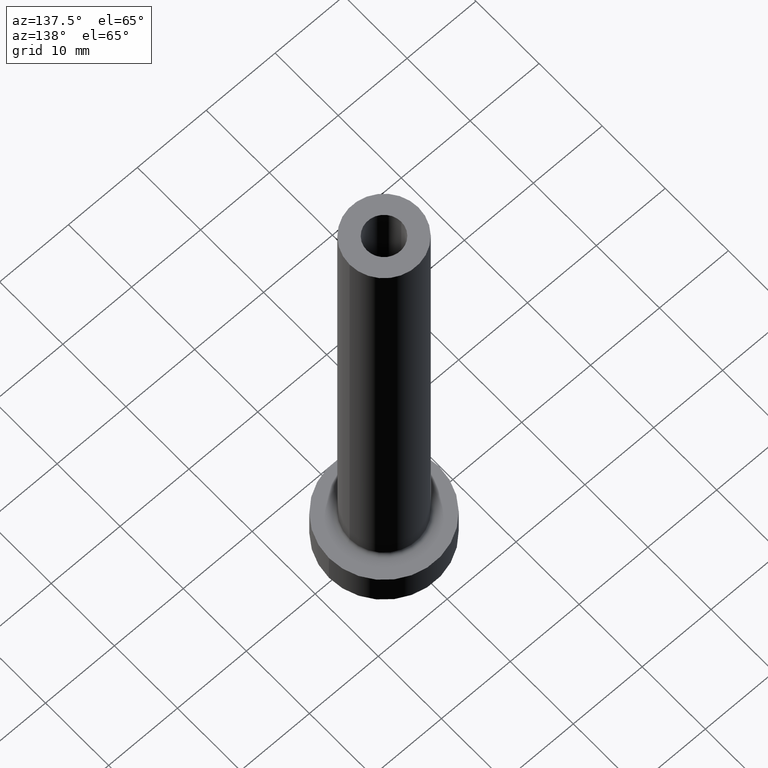
[diagram: clean part render]
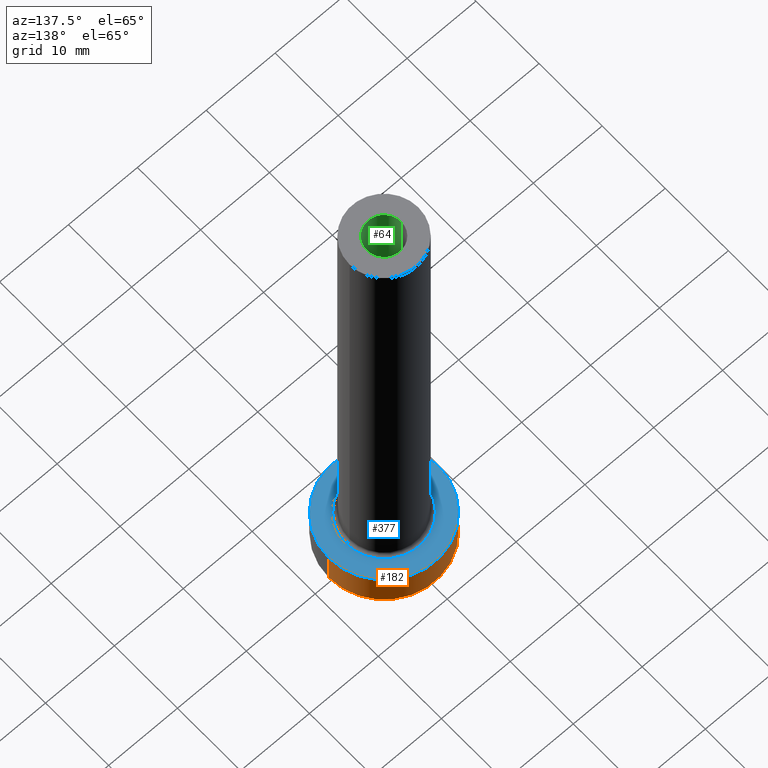
[diagram: same view with three faces highlighted in distinct colors, each labeled with its STEP entity id]
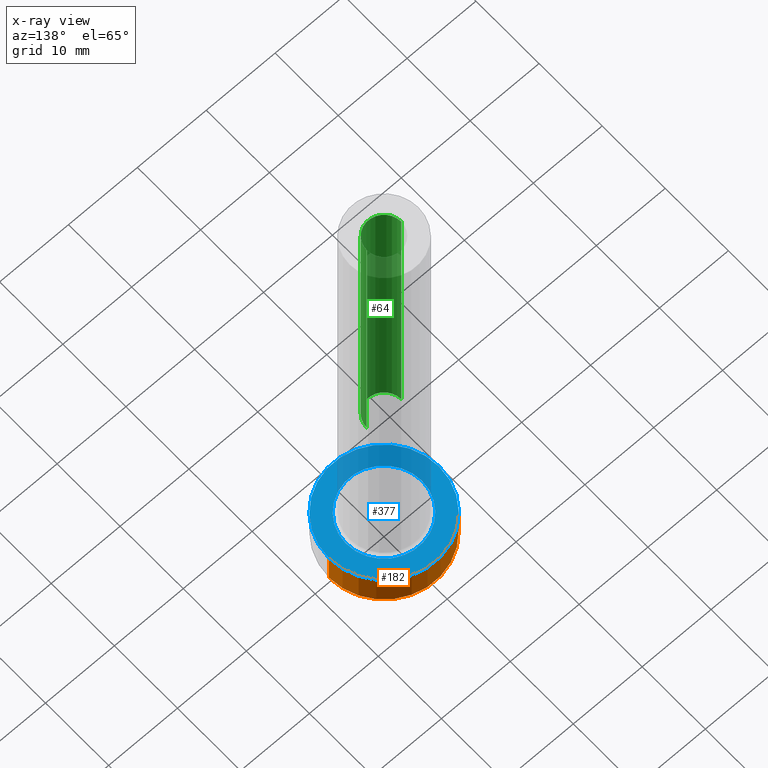
[diagram: x-ray of the same camera — body ghosted, the three highlighted faces saturated]
A machine part, auxiliary view with three faces highlighted in distinct colors.
The next image is the same camera in x-ray (body ghosted, the three faces saturated) — at least one of them is partly hidden behind the body in this view.
Their STEP definitions:

[orange] entity #182 — the highlighted cylindrical surface (partial cylindrical patch) has radius 8 mm, axis along (-0, -0, -1).
#5 = CARTESIAN_POINT ( 'NONE',  ( 8.000000000000000000, 9.797174393178825657E-16, 0.000000000000000000 ) ) ;
#20 = EDGE_CURVE ( 'NONE', #262, #96, #54, .T. ) ;
#21 = VERTEX_POINT ( 'NONE', #5 ) ;
#23 = DIRECTION ( 'NONE',  ( -0.000000000000000000, -0.000000000000000000, -1.000000000000000000 ) ) ;
#31 = AXIS2_PLACEMENT_3D ( 'NONE', #343, #40, #347 ) ;
#40 = DIRECTION ( 'NONE',  ( 0.000000000000000000, 0.000000000000000000, 1.000000000000000000 ) ) ;
#54 = LINE ( 'NONE', #227, #230 ) ;
#58 = ORIENTED_EDGE ( 'NONE', *, *, #20, .F. ) ;
#78 = CIRCLE ( 'NONE', #458, 8.000000000000000000 ) ;
#88 = ORIENTED_EDGE ( 'NONE', *, *, #199, .F. ) ;
#96 = VERTEX_POINT ( 'NONE', #250 ) ;
#110 = CARTESIAN_POINT ( 'NONE',  ( -8.000000000000000000, 0.000000000000000000, 5.000000000000000000 ) ) ;
#138 = ORIENTED_EDGE ( 'NONE', *, *, #272, .T. ) ;
#155 = LINE ( 'NONE', #359, #366 ) ;
#172 = DIRECTION ( 'NONE',  ( 0.000000000000000000, 0.000000000000000000, 1.000000000000000000 ) ) ;
#182 = ADVANCED_FACE ( 'NONE', ( #428 ), #395, .T. ) ;
#183 = DIRECTION ( 'NONE',  ( -0.000000000000000000, -0.000000000000000000, -1.000000000000000000 ) ) ;
#199 = EDGE_CURVE ( 'NONE', #305, #262, #429, .T. ) ;
#227 = CARTESIAN_POINT ( 'NONE',  ( -8.000000000000000000, 0.000000000000000000, 5.000000000000000000 ) ) ;
#230 = VECTOR ( 'NONE', #23, 1000.000000000000000 ) ;
#243 = DIRECTION ( 'NONE',  ( -0.000000000000000000, -0.000000000000000000, -1.000000000000000000 ) ) ;
#250 = CARTESIAN_POINT ( 'NONE',  ( -8.000000000000000000, 0.000000000000000000, 0.000000000000000000 ) ) ;
#253 = CARTESIAN_POINT ( 'NONE',  ( 8.000000000000000000, 9.797174393178825657E-16, 5.000000000000000000 ) ) ;
#262 = VERTEX_POINT ( 'NONE', #110 ) ;
#272 = EDGE_CURVE ( 'NONE', #305, #21, #155, .T. ) ;
#304 = ORIENTED_EDGE ( 'NONE', *, *, #448, .T. ) ;
#305 = VERTEX_POINT ( 'NONE', #253 ) ;
#307 = DIRECTION ( 'NONE',  ( 1.000000000000000000, 0.000000000000000000, 0.000000000000000000 ) ) ;
#343 = CARTESIAN_POINT ( 'NONE',  ( 0.000000000000000000, 0.000000000000000000, 5.000000000000000000 ) ) ;
#347 = DIRECTION ( 'NONE',  ( 1.000000000000000000, 0.000000000000000000, 0.000000000000000000 ) ) ;
#350 = CARTESIAN_POINT ( 'NONE',  ( 0.000000000000000000, 0.000000000000000000, 5.000000000000000000 ) ) ;
#359 = CARTESIAN_POINT ( 'NONE',  ( 8.000000000000000000, 9.797174393178825657E-16, 5.000000000000000000 ) ) ;
#366 = VECTOR ( 'NONE', #183, 1000.000000000000000 ) ;
#386 = DIRECTION ( 'NONE',  ( -1.000000000000000000, 0.000000000000000000, 0.000000000000000000 ) ) ;
#395 = CYLINDRICAL_SURFACE ( 'NONE', #441, 8.000000000000000000 ) ;
#416 = EDGE_LOOP ( 'NONE', ( #88, #138, #304, #58 ) ) ;
#426 = CARTESIAN_POINT ( 'NONE',  ( 0.000000000000000000, 0.000000000000000000, 0.000000000000000000 ) ) ;
#428 = FACE_OUTER_BOUND ( 'NONE', #416, .T. ) ;
#429 = CIRCLE ( 'NONE', #31, 8.000000000000000000 ) ;
#441 = AXIS2_PLACEMENT_3D ( 'NONE', #350, #243, #386 ) ;
#448 = EDGE_CURVE ( 'NONE', #21, #96, #78, .T. ) ;
#458 = AXIS2_PLACEMENT_3D ( 'NONE', #426, #172, #307 ) ;

[blue] entity #377 — the highlighted planar face has unit normal (0, 0, 1).
#2 = FACE_OUTER_BOUND ( 'NONE', #140, .T. ) ;
#6 = AXIS2_PLACEMENT_3D ( 'NONE', #218, #280, #68 ) ;
#13 = EDGE_CURVE ( 'NONE', #135, #170, #177, .T. ) ;
#31 = AXIS2_PLACEMENT_3D ( 'NONE', #343, #40, #347 ) ;
#40 = DIRECTION ( 'NONE',  ( 0.000000000000000000, 0.000000000000000000, 1.000000000000000000 ) ) ;
#49 = CIRCLE ( 'NONE', #143, 5.500000000000000000 ) ;
#68 = DIRECTION ( 'NONE',  ( 1.000000000000000000, 0.000000000000000000, -0.000000000000000000 ) ) ;
#69 = DIRECTION ( 'NONE',  ( 0.000000000000000000, 0.000000000000000000, 1.000000000000000000 ) ) ;
#74 = DIRECTION ( 'NONE',  ( 1.000000000000000000, 0.000000000000000000, 0.000000000000000000 ) ) ;
#91 = ORIENTED_EDGE ( 'NONE', *, *, #100, .T. ) ;
#99 = ORIENTED_EDGE ( 'NONE', *, *, #226, .T. ) ;
#100 = EDGE_CURVE ( 'NONE', #170, #135, #49, .T. ) ;
#110 = CARTESIAN_POINT ( 'NONE',  ( -8.000000000000000000, 0.000000000000000000, 5.000000000000000000 ) ) ;
#116 = DIRECTION ( 'NONE',  ( 1.000000000000000000, 0.000000000000000000, 0.000000000000000000 ) ) ;
#131 = DIRECTION ( 'NONE',  ( -0.000000000000000000, -0.000000000000000000, -1.000000000000000000 ) ) ;
#135 = VERTEX_POINT ( 'NONE', #181 ) ;
#140 = EDGE_LOOP ( 'NONE', ( #99, #195 ) ) ;
#143 = AXIS2_PLACEMENT_3D ( 'NONE', #451, #131, #116 ) ;
#149 = PLANE ( 'NONE',  #6 ) ;
#170 = VERTEX_POINT ( 'NONE', #247 ) ;
#175 = FACE_BOUND ( 'NONE', #266, .T. ) ;
#177 = CIRCLE ( 'NONE', #385, 5.500000000000000000 ) ;
#181 = CARTESIAN_POINT ( 'NONE',  ( -5.500000000000000000, 6.735557395310442023E-16, 5.000000000000002665 ) ) ;
#195 = ORIENTED_EDGE ( 'NONE', *, *, #199, .T. ) ;
#199 = EDGE_CURVE ( 'NONE', #305, #262, #429, .T. ) ;
#218 = CARTESIAN_POINT ( 'NONE',  ( 0.000000000000000000, 0.000000000000000000, 5.000000000000000000 ) ) ;
#226 = EDGE_CURVE ( 'NONE', #262, #305, #446, .T. ) ;
#247 = CARTESIAN_POINT ( 'NONE',  ( 5.500000000000000000, 0.000000000000000000, 5.000000000000002665 ) ) ;
#253 = CARTESIAN_POINT ( 'NONE',  ( 8.000000000000000000, 9.797174393178825657E-16, 5.000000000000000000 ) ) ;
#262 = VERTEX_POINT ( 'NONE', #110 ) ;
#266 = EDGE_LOOP ( 'NONE', ( #91, #376 ) ) ;
#280 = DIRECTION ( 'NONE',  ( 0.000000000000000000, 0.000000000000000000, 1.000000000000000000 ) ) ;
#282 = CARTESIAN_POINT ( 'NONE',  ( 0.000000000000000000, 0.000000000000000000, 5.000000000000000000 ) ) ;
#305 = VERTEX_POINT ( 'NONE', #253 ) ;
#343 = CARTESIAN_POINT ( 'NONE',  ( 0.000000000000000000, 0.000000000000000000, 5.000000000000000000 ) ) ;
#347 = DIRECTION ( 'NONE',  ( 1.000000000000000000, 0.000000000000000000, 0.000000000000000000 ) ) ;
#357 = DIRECTION ( 'NONE',  ( -0.000000000000000000, -0.000000000000000000, -1.000000000000000000 ) ) ;
#376 = ORIENTED_EDGE ( 'NONE', *, *, #13, .T. ) ;
#377 = ADVANCED_FACE ( 'NONE', ( #175, #2 ), #149, .T. ) ;
#385 = AXIS2_PLACEMENT_3D ( 'NONE', #282, #357, #437 ) ;
#407 = AXIS2_PLACEMENT_3D ( 'NONE', #423, #69, #74 ) ;
#423 = CARTESIAN_POINT ( 'NONE',  ( 0.000000000000000000, 0.000000000000000000, 5.000000000000000000 ) ) ;
#429 = CIRCLE ( 'NONE', #31, 8.000000000000000000 ) ;
#437 = DIRECTION ( 'NONE',  ( 1.000000000000000000, 0.000000000000000000, 0.000000000000000000 ) ) ;
#446 = CIRCLE ( 'NONE', #407, 8.000000000000000000 ) ;
#451 = CARTESIAN_POINT ( 'NONE',  ( 0.000000000000000000, 0.000000000000000000, 5.000000000000000000 ) ) ;

[green] entity #64 — the highlighted cylindrical surface (edge-blend (fillet) strip) has radius 2.5 mm, axis along (0, 0, -1).
#28 = AXIS2_PLACEMENT_3D ( 'NONE', #260, #248, #396 ) ;
#39 = DIRECTION ( 'NONE',  ( 0.000000000000000000, 0.000000000000000000, 1.000000000000000000 ) ) ;
#44 = CARTESIAN_POINT ( 'NONE',  ( -2.500000000000000000, 0.000000000000000000, 75.00000000000001421 ) ) ;
#60 = AXIS2_PLACEMENT_3D ( 'NONE', #158, #410, #113 ) ;
#63 = ORIENTED_EDGE ( 'NONE', *, *, #321, .T. ) ;
#64 = ADVANCED_FACE ( 'NONE', ( #277 ), #127, .F. ) ;
#65 = VERTEX_POINT ( 'NONE', #163 ) ;
#76 = CIRCLE ( 'NONE', #28, 2.500000000000000000 ) ;
#80 = DIRECTION ( 'NONE',  ( 1.000000000000000000, 0.000000000000000000, 0.000000000000000000 ) ) ;
#82 = CARTESIAN_POINT ( 'NONE',  ( 2.500000000000000000, 3.061616997868382648E-16, 30.00000000000001421 ) ) ;
#97 = ORIENTED_EDGE ( 'NONE', *, *, #142, .T. ) ;
#103 = ORIENTED_EDGE ( 'NONE', *, *, #459, .F. ) ;
#113 = DIRECTION ( 'NONE',  ( -1.000000000000000000, 0.000000000000000000, 0.000000000000000000 ) ) ;
#127 = CYLINDRICAL_SURFACE ( 'NONE', #60, 2.500000000000000000 ) ;
#129 = VERTEX_POINT ( 'NONE', #148 ) ;
#136 = EDGE_CURVE ( 'NONE', #129, #322, #235, .T. ) ;
#142 = EDGE_CURVE ( 'NONE', #417, #65, #76, .T. ) ;
#144 = LINE ( 'NONE', #213, #443 ) ;
#148 = CARTESIAN_POINT ( 'NONE',  ( -2.500000000000000000, 0.000000000000000000, 30.00000000000001421 ) ) ;
#158 = CARTESIAN_POINT ( 'NONE',  ( 0.000000000000000000, 0.000000000000000000, 75.00000000000001421 ) ) ;
#161 = AXIS2_PLACEMENT_3D ( 'NONE', #433, #39, #80 ) ;
#163 = CARTESIAN_POINT ( 'NONE',  ( 2.500000000000000000, 3.061616997868382648E-16, 75.00000000000001421 ) ) ;
#174 = EDGE_LOOP ( 'NONE', ( #97, #63, #411, #103 ) ) ;
#186 = DIRECTION ( 'NONE',  ( 0.000000000000000000, 0.000000000000000000, -1.000000000000000000 ) ) ;
#213 = CARTESIAN_POINT ( 'NONE',  ( -2.500000000000000000, 0.000000000000000000, 75.00000000000001421 ) ) ;
#235 = CIRCLE ( 'NONE', #161, 2.500000000000000000 ) ;
#248 = DIRECTION ( 'NONE',  ( 0.000000000000000000, 0.000000000000000000, 1.000000000000000000 ) ) ;
#260 = CARTESIAN_POINT ( 'NONE',  ( 0.000000000000000000, 0.000000000000000000, 75.00000000000001421 ) ) ;
#277 = FACE_OUTER_BOUND ( 'NONE', #174, .T. ) ;
#284 = LINE ( 'NONE', #401, #378 ) ;
#321 = EDGE_CURVE ( 'NONE', #65, #322, #284, .T. ) ;
#322 = VERTEX_POINT ( 'NONE', #82 ) ;
#349 = DIRECTION ( 'NONE',  ( 0.000000000000000000, 0.000000000000000000, -1.000000000000000000 ) ) ;
#378 = VECTOR ( 'NONE', #186, 1000.000000000000000 ) ;
#396 = DIRECTION ( 'NONE',  ( 1.000000000000000000, 0.000000000000000000, 0.000000000000000000 ) ) ;
#401 = CARTESIAN_POINT ( 'NONE',  ( 2.500000000000000000, 3.061616997868382648E-16, 75.00000000000001421 ) ) ;
#410 = DIRECTION ( 'NONE',  ( 0.000000000000000000, 0.000000000000000000, -1.000000000000000000 ) ) ;
#411 = ORIENTED_EDGE ( 'NONE', *, *, #136, .F. ) ;
#417 = VERTEX_POINT ( 'NONE', #44 ) ;
#433 = CARTESIAN_POINT ( 'NONE',  ( 0.000000000000000000, 0.000000000000000000, 30.00000000000001421 ) ) ;
#443 = VECTOR ( 'NONE', #349, 1000.000000000000000 ) ;
#459 = EDGE_CURVE ( 'NONE', #417, #129, #144, .T. ) ;